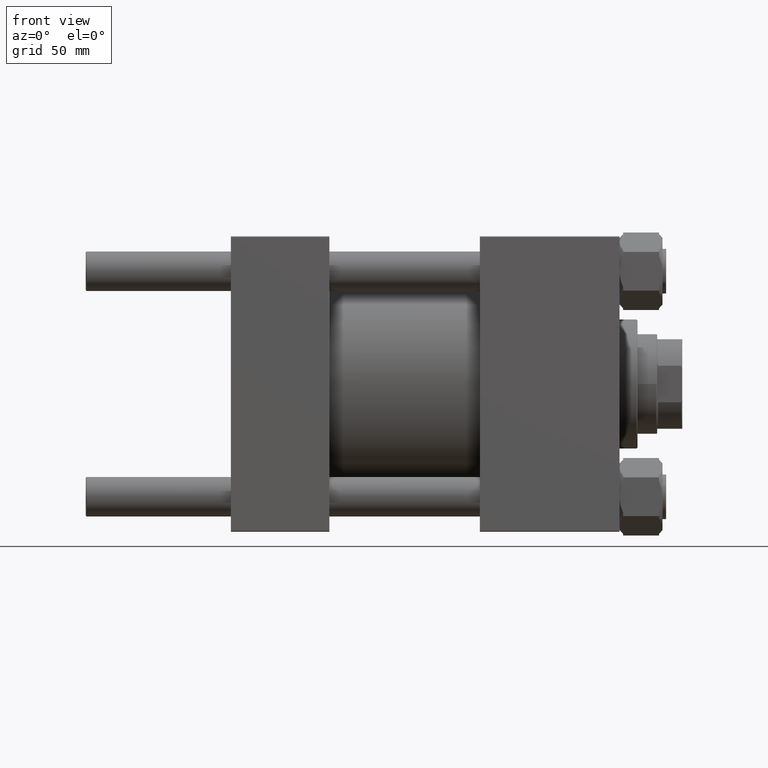
[diagram: clean part render]
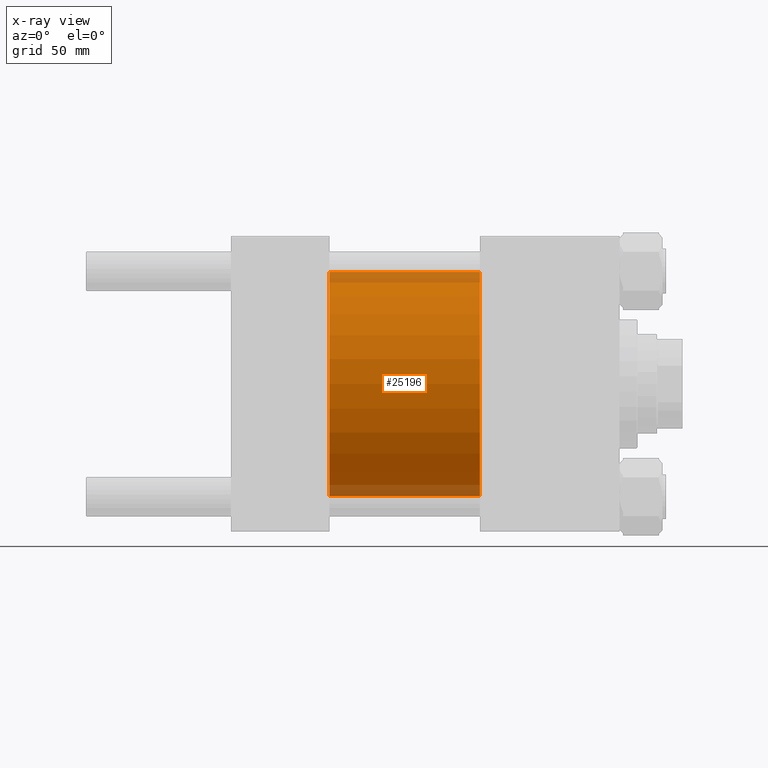
[diagram: x-ray — body ghosted, one internal face saturated and labeled with its STEP entity id]
A machine part, front view, then the same camera in x-ray: the body is ghosted and one INTERNAL B-rep face — a face not visible from any outside direction — is saturated and labeled: STEP entity #25196.
In plain terms, the highlighted cylindrical surface (partial cylindrical patch) has radius 62.5 mm, axis along (-1, -0, -0).
Its self-contained STEP definition (entity closure, byte-faithful):
#2175 = VERTEX_POINT ( 'NONE', #47343 ) ;
#2686 = CARTESIAN_POINT ( 'NONE',  ( 55.00000000000000000, 7.654042494670956226E-15, -62.50000000000000000 ) ) ;
#5936 = DIRECTION ( 'NONE',  ( 0.000000000000000000, 0.000000000000000000, -1.000000000000000000 ) ) ;
#6020 = CARTESIAN_POINT ( 'NONE',  ( 139.0000000000000000, 0.000000000000000000, 62.50000000000000000 ) ) ;
#9745 = VERTEX_POINT ( 'NONE', #6020 ) ;
#10265 = CARTESIAN_POINT ( 'NONE',  ( 55.00000000000000000, 0.000000000000000000, 0.000000000000000000 ) ) ;
#11721 = EDGE_LOOP ( 'NONE', ( #43839, #17823, #33633, #16780 ) ) ;
#11800 = DIRECTION ( 'NONE',  ( 1.000000000000000000, 0.000000000000000000, 0.000000000000000000 ) ) ;
#12843 = CYLINDRICAL_SURFACE ( 'NONE', #16695, 62.50000000000000000 ) ;
#13927 = LINE ( 'NONE', #33498, #25129 ) ;
#14065 = DIRECTION ( 'NONE',  ( 1.000000000000000000, 0.000000000000000000, 0.000000000000000000 ) ) ;
#15073 = VERTEX_POINT ( 'NONE', #19526 ) ;
#15850 = DIRECTION ( 'NONE',  ( 0.000000000000000000, 0.000000000000000000, -1.000000000000000000 ) ) ;
#15897 = DIRECTION ( 'NONE',  ( -1.000000000000000000, -0.000000000000000000, -0.000000000000000000 ) ) ;
#16695 = AXIS2_PLACEMENT_3D ( 'NONE', #35473, #15897, #43115 ) ;
#16699 = AXIS2_PLACEMENT_3D ( 'NONE', #19399, #11800, #15850 ) ;
#16780 = ORIENTED_EDGE ( 'NONE', *, *, #38653, .F. ) ;
#17823 = ORIENTED_EDGE ( 'NONE', *, *, #34393, .T. ) ;
#19399 = CARTESIAN_POINT ( 'NONE',  ( 139.0000000000000000, 0.000000000000000000, 0.000000000000000000 ) ) ;
#19526 = CARTESIAN_POINT ( 'NONE',  ( 55.00000000000000000, 0.000000000000000000, 62.50000000000000000 ) ) ;
#22333 = EDGE_CURVE ( 'NONE', #9745, #2175, #38665, .T. ) ;
#23516 = FACE_OUTER_BOUND ( 'NONE', #11721, .T. ) ;
#25129 = VECTOR ( 'NONE', #41634, 1000.000000000000000 ) ;
#25196 = ADVANCED_FACE ( 'NONE', ( #23516 ), #12843, .F. ) ;
#28466 = CIRCLE ( 'NONE', #39848, 62.50000000000000000 ) ;
#31906 = CARTESIAN_POINT ( 'NONE',  ( 139.0000000000000000, 0.000000000000000000, 62.50000000000000000 ) ) ;
#33498 = CARTESIAN_POINT ( 'NONE',  ( 139.0000000000000000, 7.654042494670956226E-15, -62.50000000000000000 ) ) ;
#33633 = ORIENTED_EDGE ( 'NONE', *, *, #37164, .F. ) ;
#34393 = EDGE_CURVE ( 'NONE', #2175, #49989, #13927, .T. ) ;
#35220 = DIRECTION ( 'NONE',  ( -1.000000000000000000, -0.000000000000000000, -0.000000000000000000 ) ) ;
#35473 = CARTESIAN_POINT ( 'NONE',  ( 139.0000000000000000, 0.000000000000000000, 0.000000000000000000 ) ) ;
#37164 = EDGE_CURVE ( 'NONE', #15073, #49989, #28466, .T. ) ;
#38653 = EDGE_CURVE ( 'NONE', #9745, #15073, #38783, .T. ) ;
#38665 = CIRCLE ( 'NONE', #16699, 62.50000000000000000 ) ;
#38783 = LINE ( 'NONE', #31906, #39050 ) ;
#39050 = VECTOR ( 'NONE', #35220, 1000.000000000000000 ) ;
#39848 = AXIS2_PLACEMENT_3D ( 'NONE', #10265, #14065, #5936 ) ;
#41634 = DIRECTION ( 'NONE',  ( -1.000000000000000000, -0.000000000000000000, -0.000000000000000000 ) ) ;
#43115 = DIRECTION ( 'NONE',  ( 0.000000000000000000, 0.000000000000000000, 1.000000000000000000 ) ) ;
#43839 = ORIENTED_EDGE ( 'NONE', *, *, #22333, .T. ) ;
#47343 = CARTESIAN_POINT ( 'NONE',  ( 139.0000000000000000, 7.654042494670956226E-15, -62.50000000000000000 ) ) ;
#49989 = VERTEX_POINT ( 'NONE', #2686 ) ;